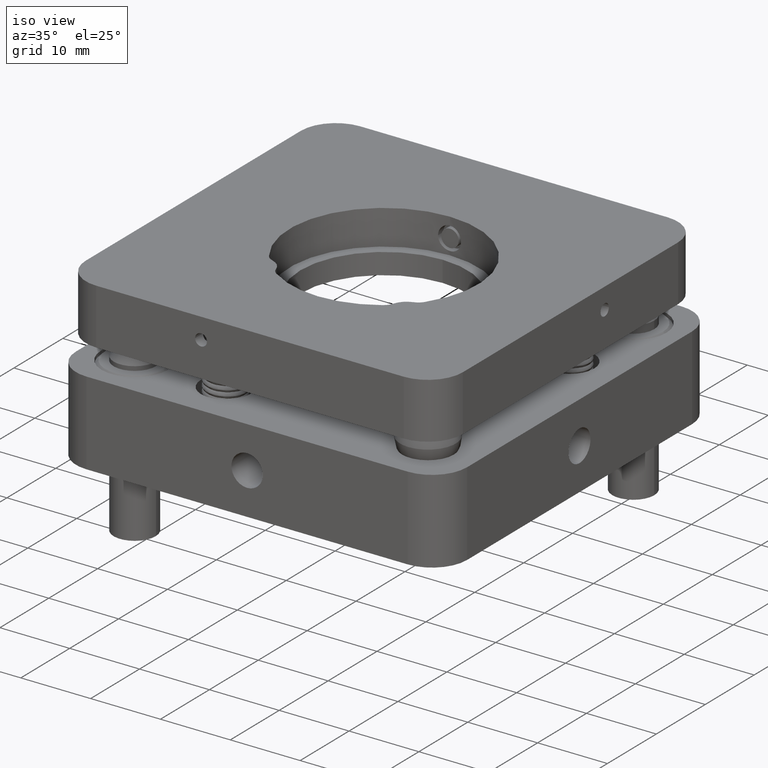
[diagram: clean part render]
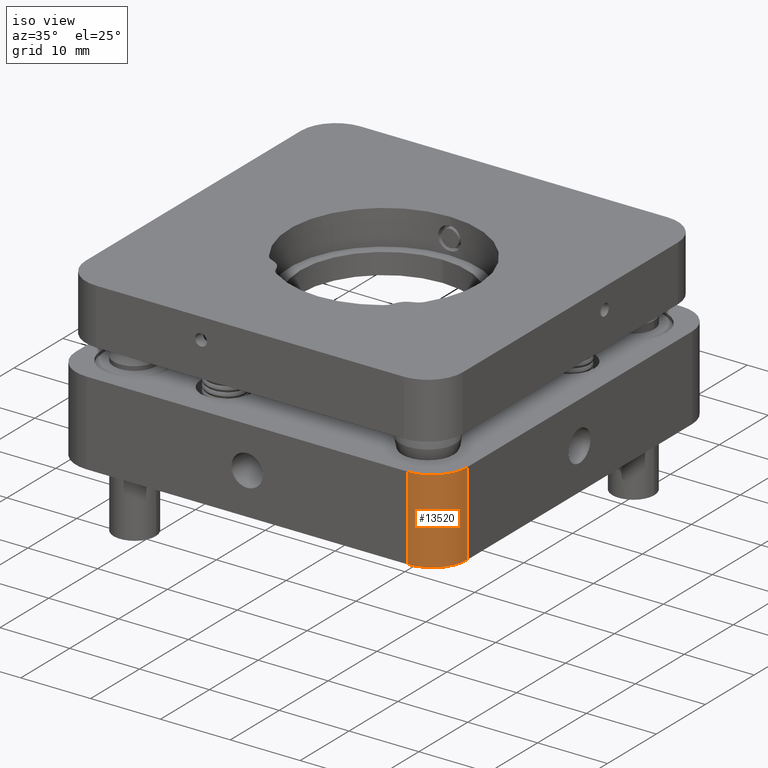
[diagram: same view with one face highlighted and labeled with its STEP entity id]
A machine part, iso view. The second image highlights one B-rep face of the part: STEP entity #13520.
In plain terms, the highlighted cylindrical surface (partial cylindrical patch) has radius 5 mm, axis along (0, 0, 1).
Its self-contained STEP definition (entity closure, byte-faithful):
#64 = DIRECTION ( 'NONE',  ( 1.000000000000000000, 0.000000000000000000, 0.000000000000000000 ) ) ;
#114 = CARTESIAN_POINT ( 'NONE',  ( 22.99999999999997158, -27.99999999999999645, -3.000000000000002665 ) ) ;
#658 = CARTESIAN_POINT ( 'NONE',  ( 23.00000000000001066, -23.00000000000000000, -15.00000000000000355 ) ) ;
#977 = DIRECTION ( 'NONE',  ( 0.000000000000000000, 0.000000000000000000, 1.000000000000000000 ) ) ;
#1038 = VERTEX_POINT ( 'NONE', #7580 ) ;
#1918 = VERTEX_POINT ( 'NONE', #4360 ) ;
#2626 = CIRCLE ( 'NONE', #11766, 5.000000000000000888 ) ;
#2669 = CIRCLE ( 'NONE', #13560, 5.000000000000000888 ) ;
#2898 = DIRECTION ( 'NONE',  ( 0.000000000000000000, 0.000000000000000000, 1.000000000000000000 ) ) ;
#3324 = ORIENTED_EDGE ( 'NONE', *, *, #10283, .T. ) ;
#4117 = DIRECTION ( 'NONE',  ( 0.000000000000000000, 0.000000000000000000, 1.000000000000000000 ) ) ;
#4360 = CARTESIAN_POINT ( 'NONE',  ( 28.00000000000001066, -22.99999999999996092, -15.00000000000000355 ) ) ;
#4804 = CARTESIAN_POINT ( 'NONE',  ( 23.00000000000001066, -23.00000000000000000, -3.000000000000002665 ) ) ;
#4878 = EDGE_CURVE ( 'NONE', #13128, #1038, #2669, .T. ) ;
#5387 = CARTESIAN_POINT ( 'NONE',  ( 23.00000000000001066, -23.00000000000000000, -15.00000000000000355 ) ) ;
#6357 = CARTESIAN_POINT ( 'NONE',  ( 28.00000000000001066, -22.99999999999996092, -15.00000000000000355 ) ) ;
#6701 = ORIENTED_EDGE ( 'NONE', *, *, #12769, .T. ) ;
#7114 = DIRECTION ( 'NONE',  ( 0.000000000000000000, 0.000000000000000000, 1.000000000000000000 ) ) ;
#7263 = EDGE_LOOP ( 'NONE', ( #12357, #11360, #6701, #3324 ) ) ;
#7580 = CARTESIAN_POINT ( 'NONE',  ( 28.00000000000001066, -22.99999999999996092, -3.000000000000002665 ) ) ;
#8416 = VECTOR ( 'NONE', #13410, 1000.000000000000000 ) ;
#8848 = AXIS2_PLACEMENT_3D ( 'NONE', #658, #2898, #11172 ) ;
#8879 = CARTESIAN_POINT ( 'NONE',  ( 22.99999999999997158, -27.99999999999999645, -15.00000000000000355 ) ) ;
#9440 = LINE ( 'NONE', #13679, #8416 ) ;
#10201 = FACE_OUTER_BOUND ( 'NONE', #7263, .T. ) ;
#10283 = EDGE_CURVE ( 'NONE', #1918, #1038, #13636, .T. ) ;
#10886 = EDGE_CURVE ( 'NONE', #13141, #13128, #9440, .T. ) ;
#11172 = DIRECTION ( 'NONE',  ( 1.000000000000000000, 0.000000000000000000, 0.000000000000000000 ) ) ;
#11360 = ORIENTED_EDGE ( 'NONE', *, *, #10886, .F. ) ;
#11766 = AXIS2_PLACEMENT_3D ( 'NONE', #5387, #977, #64 ) ;
#12357 = ORIENTED_EDGE ( 'NONE', *, *, #4878, .F. ) ;
#12424 = CYLINDRICAL_SURFACE ( 'NONE', #8848, 5.000000000000000888 ) ;
#12769 = EDGE_CURVE ( 'NONE', #13141, #1918, #2626, .T. ) ;
#12836 = VECTOR ( 'NONE', #4117, 1000.000000000000000 ) ;
#13128 = VERTEX_POINT ( 'NONE', #114 ) ;
#13141 = VERTEX_POINT ( 'NONE', #8879 ) ;
#13363 = DIRECTION ( 'NONE',  ( 1.000000000000000000, 0.000000000000000000, 0.000000000000000000 ) ) ;
#13410 = DIRECTION ( 'NONE',  ( 0.000000000000000000, 0.000000000000000000, 1.000000000000000000 ) ) ;
#13520 = ADVANCED_FACE ( 'NONE', ( #10201 ), #12424, .T. ) ;
#13560 = AXIS2_PLACEMENT_3D ( 'NONE', #4804, #7114, #13363 ) ;
#13636 = LINE ( 'NONE', #6357, #12836 ) ;
#13679 = CARTESIAN_POINT ( 'NONE',  ( 22.99999999999997158, -27.99999999999999645, -15.00000000000000355 ) ) ;